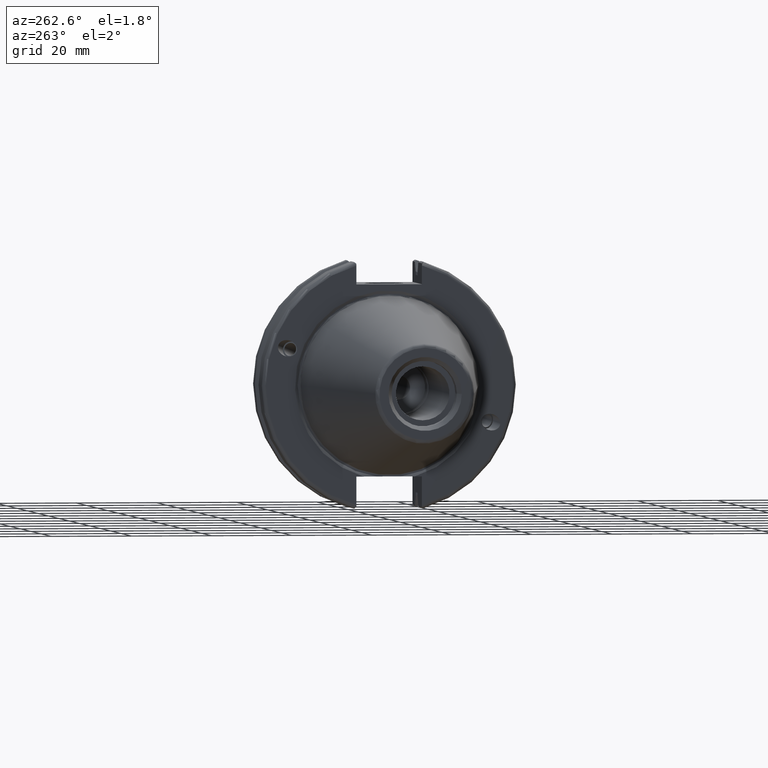
[diagram: clean part render]
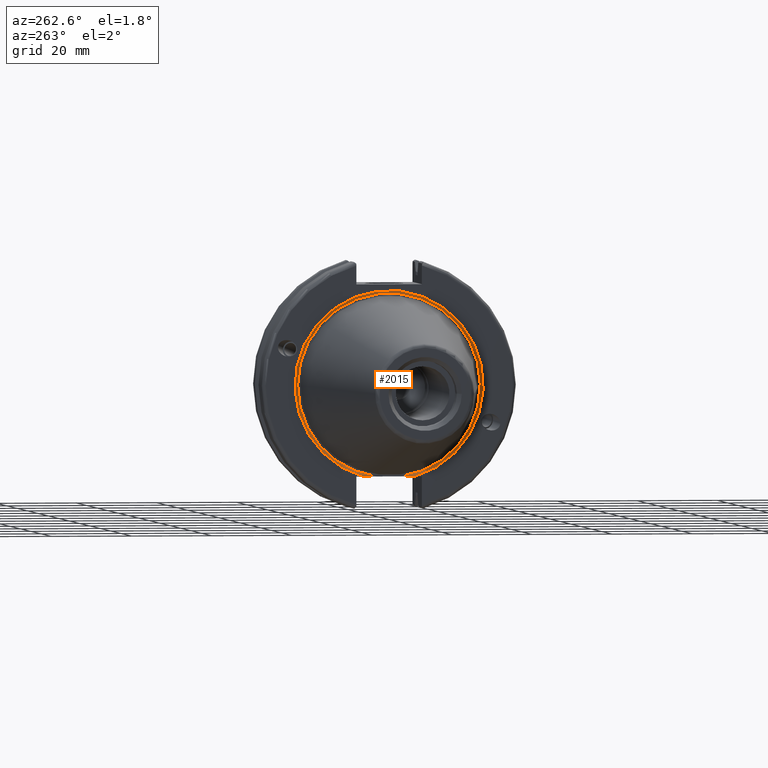
[diagram: same view with one face highlighted and labeled with its STEP entity id]
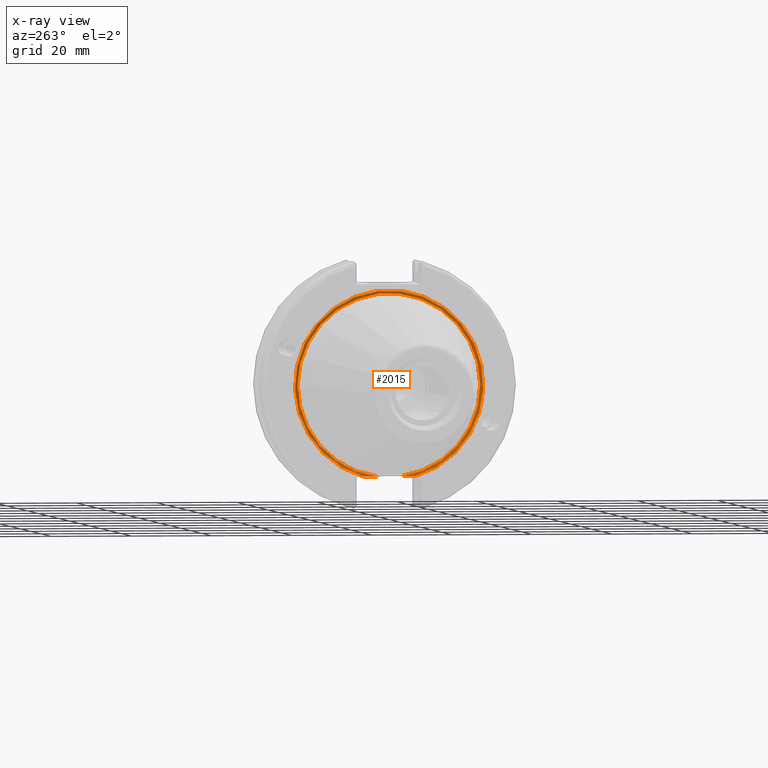
[diagram: x-ray of the same camera — body ghosted, the highlighted face saturated]
A machine part, auxiliary view. The second image highlights one B-rep face of the part: STEP entity #2015.
The next image is the same camera in x-ray: the body ghosted, the highlighted face saturated — about 0% of this face is hidden behind the body in this view.
In plain terms, the highlighted conical surface has half-angle 60 deg.
Its self-contained STEP definition (entity closure, byte-faithful):
#31=(
BOUNDED_CURVE()
B_SPLINE_CURVE(2,(#3895,#3896,#3897),.UNSPECIFIED.,.F.,.F.)
B_SPLINE_CURVE_WITH_KNOTS((3,3),(0.,0.339841691449478),.UNSPECIFIED.)
CURVE()
GEOMETRIC_REPRESENTATION_ITEM()
RATIONAL_B_SPLINE_CURVE((1.,1.00266518417082,1.))
REPRESENTATION_ITEM('')
);
#32=(
BOUNDED_CURVE()
B_SPLINE_CURVE(2,(#3900,#3901,#3902),.UNSPECIFIED.,.F.,.F.)
B_SPLINE_CURVE_WITH_KNOTS((3,3),(0.,0.339841691449478),.UNSPECIFIED.)
CURVE()
GEOMETRIC_REPRESENTATION_ITEM()
RATIONAL_B_SPLINE_CURVE((1.,1.00266518417082,1.))
REPRESENTATION_ITEM('')
);
#387=CONICAL_SURFACE('',#2300,23.1535898384862,1.0471975511966);
#493=FACE_OUTER_BOUND('',#619,.T.);
#619=EDGE_LOOP('',(#1858,#1859,#1860,#1861));
#739=CIRCLE('',#2251,23.5);
#759=CIRCLE('',#2299,22.8071796769725);
#943=VERTEX_POINT('',#3799);
#944=VERTEX_POINT('',#3801);
#960=VERTEX_POINT('',#3894);
#961=VERTEX_POINT('',#3898);
#1222=EDGE_CURVE('',#943,#944,#739,.T.);
#1254=EDGE_CURVE('',#960,#944,#31,.T.);
#1256=EDGE_CURVE('',#943,#961,#32,.T.);
#1269=EDGE_CURVE('',#961,#960,#759,.T.);
#1858=ORIENTED_EDGE('',*,*,#1254,.T.);
#1859=ORIENTED_EDGE('',*,*,#1222,.F.);
#1860=ORIENTED_EDGE('',*,*,#1256,.T.);
#1861=ORIENTED_EDGE('',*,*,#1269,.T.);
#2015=ADVANCED_FACE('',(#493),#387,.F.);
#2251=AXIS2_PLACEMENT_3D('',#3802,#2801,#2802);
#2299=AXIS2_PLACEMENT_3D('',#3930,#2915,#2916);
#2300=AXIS2_PLACEMENT_3D('',#3931,#2917,#2918);
#2801=DIRECTION('center_axis',(1.,0.,0.));
#2802=DIRECTION('ref_axis',(0.,0.,-1.));
#2915=DIRECTION('center_axis',(1.,0.,0.));
#2916=DIRECTION('ref_axis',(0.,0.,-1.));
#2917=DIRECTION('center_axis',(-1.,0.,0.));
#2918=DIRECTION('ref_axis',(0.,-1.83697019872103E-16,1.));
#3799=CARTESIAN_POINT('',(0.999999999999997,6.4412731660752,-22.6));
#3801=CARTESIAN_POINT('',(1.,-6.44127316607517,-22.6));
#3802=CARTESIAN_POINT('Origin',(0.999999999999996,0.,0.));
#3894=CARTESIAN_POINT('',(1.4,-3.06715581894774,-22.6));
#3895=CARTESIAN_POINT('Ctrl Pts',(1.4,-3.06715581894779,-22.6));
#3896=CARTESIAN_POINT('Ctrl Pts',(1.27097107950098,-4.72897372977579,-22.6));
#3897=CARTESIAN_POINT('Ctrl Pts',(0.999999999999999,-6.44127316607519,-22.6));
#3898=CARTESIAN_POINT('',(1.4,3.06715581894774,-22.6));
#3900=CARTESIAN_POINT('Ctrl Pts',(0.999999999999999,6.44127316607519,-22.6));
#3901=CARTESIAN_POINT('Ctrl Pts',(1.27097107950098,4.72897372977579,-22.6));
#3902=CARTESIAN_POINT('Ctrl Pts',(1.4,3.06715581894779,-22.6));
#3930=CARTESIAN_POINT('Origin',(1.4,0.,0.));
#3931=CARTESIAN_POINT('Origin',(1.2,0.,0.));